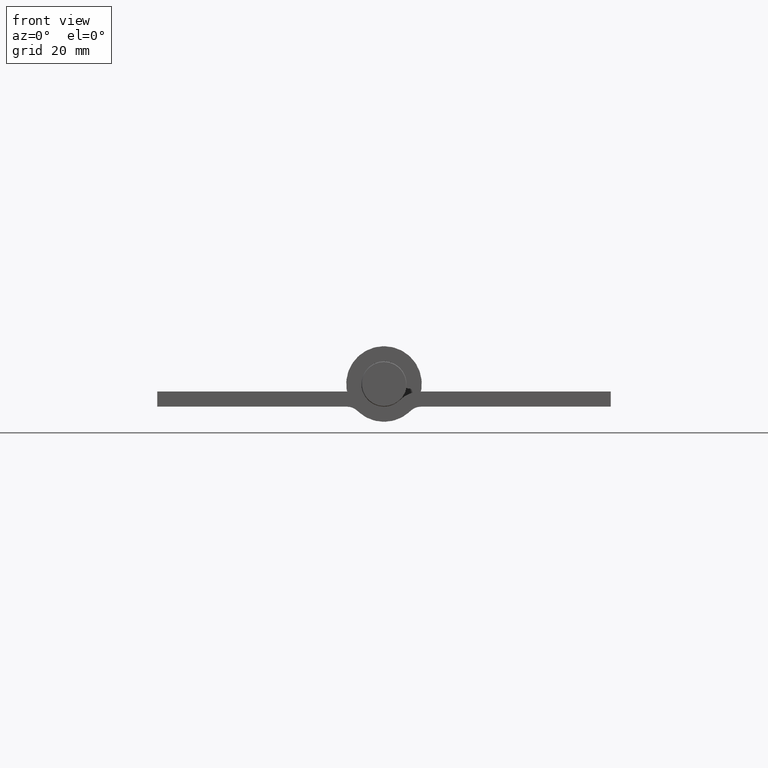
[diagram: clean part render]
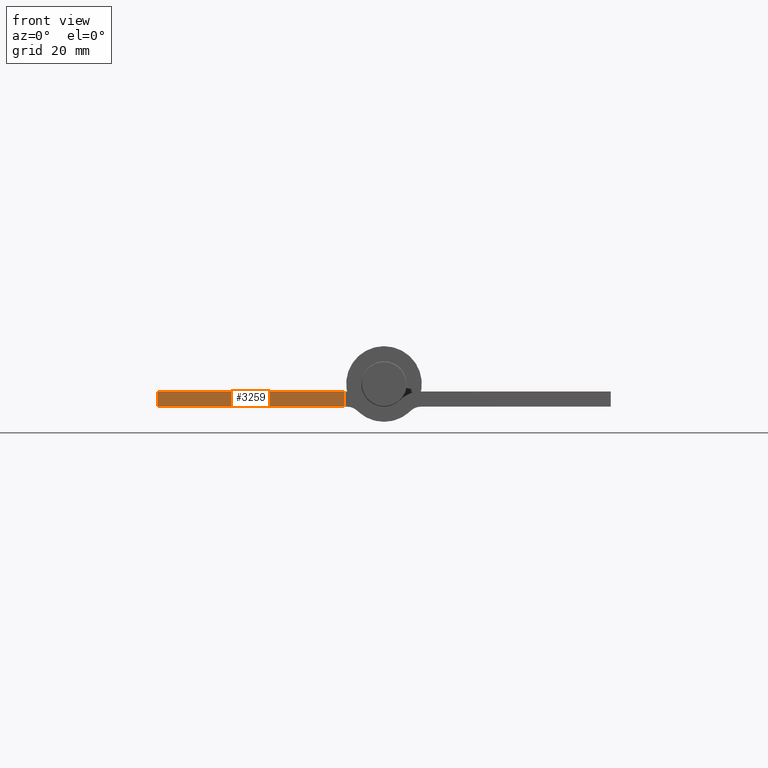
[diagram: same view with one face highlighted and labeled with its STEP entity id]
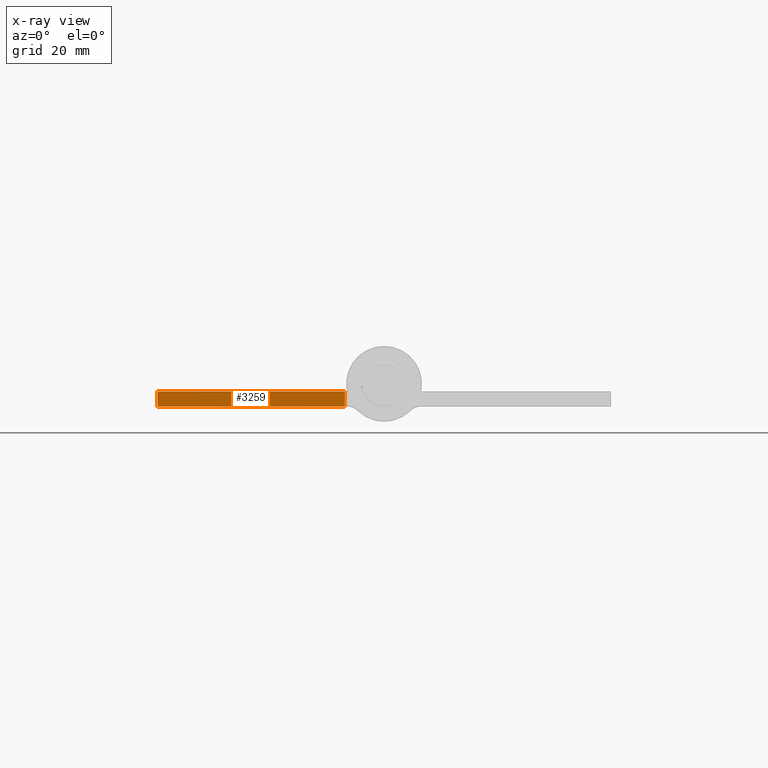
[diagram: x-ray of the same camera — body ghosted, the highlighted face saturated]
A machine part, front view. The second image highlights one B-rep face of the part: STEP entity #3259.
The next image is the same camera in x-ray: the body ghosted, the highlighted face saturated — about 0% of this face is hidden behind the body in this view.
In plain terms, the highlighted planar face has unit normal (0, -1, 0).
Its self-contained STEP definition (entity closure, byte-faithful):
#49 = EDGE_CURVE ( 'NONE', #6401, #3269, #11757, .T. ) ;
#280 = ORIENTED_EDGE ( 'NONE', *, *, #49, .F. ) ;
#776 = VECTOR ( 'NONE', #3615, 1000.000000000000000 ) ;
#1142 = CARTESIAN_POINT ( 'NONE',  ( -6.499999999999987566, -45.00000000000000000, -3.750000000000000000 ) ) ;
#1540 = CARTESIAN_POINT ( 'NONE',  ( -37.50000000000000000, -45.00000000000000000, -1.249999999999999778 ) ) ;
#1712 = VECTOR ( 'NONE', #2301, 1000.000000000000000 ) ;
#2183 = CARTESIAN_POINT ( 'NONE',  ( -37.50000000000000000, -45.00000000000000000, -3.750000000000000000 ) ) ;
#2301 = DIRECTION ( 'NONE',  ( -1.000000000000000000, -0.000000000000000000, -0.000000000000000000 ) ) ;
#2494 = CARTESIAN_POINT ( 'NONE',  ( -37.50000000000000000, -45.00000000000000000, -1.249999999999999778 ) ) ;
#3259 = ADVANCED_FACE ( 'NONE', ( #8133 ), #9426, .T. ) ;
#3269 = VERTEX_POINT ( 'NONE', #10473 ) ;
#3494 = CARTESIAN_POINT ( 'NONE',  ( -6.499999999999988454, -45.00000000000000000, -1.249999999999999334 ) ) ;
#3615 = DIRECTION ( 'NONE',  ( 1.000000000000000000, 0.000000000000000000, 1.382193584503309592E-17 ) ) ;
#3657 = CARTESIAN_POINT ( 'NONE',  ( -6.499999999999987566, -45.00000000000000000, -6.250000000000000000 ) ) ;
#4557 = ORIENTED_EDGE ( 'NONE', *, *, #5103, .F. ) ;
#4558 = DIRECTION ( 'NONE',  ( 0.000000000000000000, -1.000000000000000000, 0.000000000000000000 ) ) ;
#5103 = EDGE_CURVE ( 'NONE', #8223, #8674, #10054, .T. ) ;
#5566 = CARTESIAN_POINT ( 'NONE',  ( -6.123724356957943371, -45.00000000000000000, -6.250000000000000000 ) ) ;
#6401 = VERTEX_POINT ( 'NONE', #1142 ) ;
#6554 = ORIENTED_EDGE ( 'NONE', *, *, #11786, .F. ) ;
#6810 = VECTOR ( 'NONE', #9790, 1000.000000000000000 ) ;
#6872 = CARTESIAN_POINT ( 'NONE',  ( -37.50000000000000000, -45.00000000000000000, -1.249999999999999778 ) ) ;
#7386 = ORIENTED_EDGE ( 'NONE', *, *, #11499, .F. ) ;
#7730 = EDGE_LOOP ( 'NONE', ( #7386, #4557, #6554, #280 ) ) ;
#8133 = FACE_OUTER_BOUND ( 'NONE', #7730, .T. ) ;
#8223 = VERTEX_POINT ( 'NONE', #2494 ) ;
#8674 = VERTEX_POINT ( 'NONE', #3494 ) ;
#9426 = PLANE ( 'NONE',  #10994 ) ;
#9790 = DIRECTION ( 'NONE',  ( -0.000000000000000000, -0.000000000000000000, 1.000000000000000000 ) ) ;
#10054 = LINE ( 'NONE', #1540, #776 ) ;
#10473 = CARTESIAN_POINT ( 'NONE',  ( -37.50000000000000000, -45.00000000000000000, -3.750000000000000000 ) ) ;
#10714 = VECTOR ( 'NONE', #11422, 1000.000000000000000 ) ;
#10994 = AXIS2_PLACEMENT_3D ( 'NONE', #5566, #4558, #11287 ) ;
#11008 = LINE ( 'NONE', #6872, #6810 ) ;
#11287 = DIRECTION ( 'NONE',  ( 0.000000000000000000, -0.000000000000000000, -1.000000000000000000 ) ) ;
#11422 = DIRECTION ( 'NONE',  ( 0.000000000000000000, 0.000000000000000000, -1.000000000000000000 ) ) ;
#11499 = EDGE_CURVE ( 'NONE', #8674, #6401, #11626, .T. ) ;
#11626 = LINE ( 'NONE', #3657, #10714 ) ;
#11757 = LINE ( 'NONE', #2183, #1712 ) ;
#11786 = EDGE_CURVE ( 'NONE', #3269, #8223, #11008, .T. ) ;